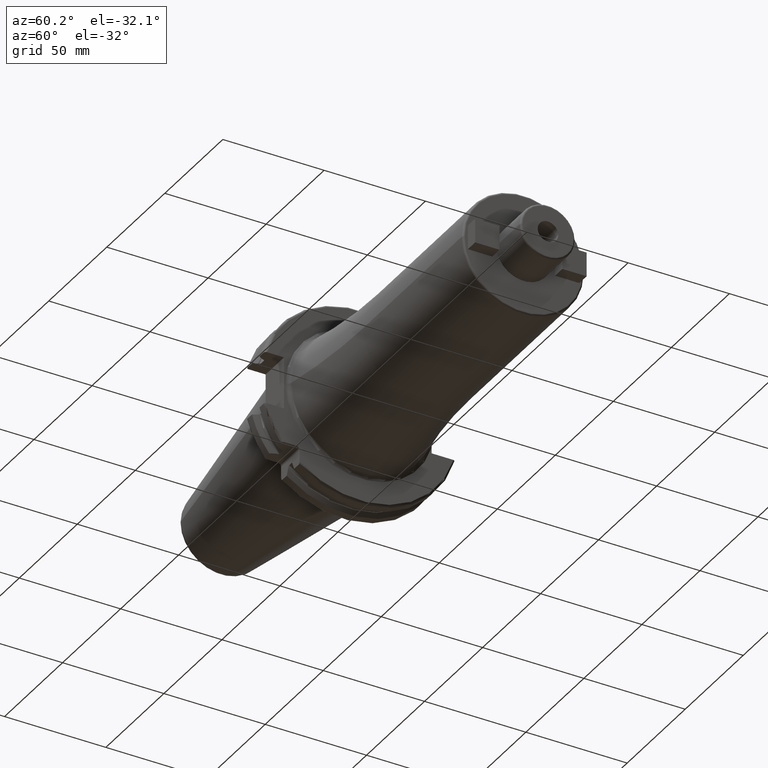
[diagram: clean part render]
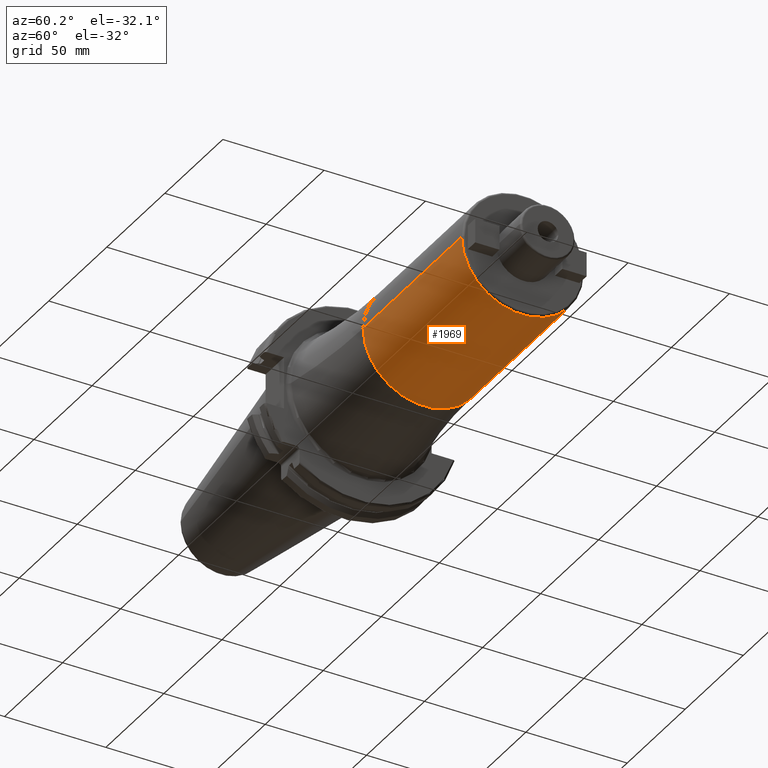
[diagram: same view with one face highlighted and labeled with its STEP entity id]
A machine part, auxiliary view. The second image highlights one B-rep face of the part: STEP entity #1969.
In plain terms, the highlighted cylindrical surface (partial cylindrical patch) has radius 30 mm, axis along (1, 0, 0).
Its self-contained STEP definition (entity closure, byte-faithful):
#222=CARTESIAN_POINT('',(7.405E1,0.E0,0.E0));
#223=DIRECTION('',(1.E0,0.E0,0.E0));
#224=DIRECTION('',(0.E0,-1.E0,0.E0));
#225=AXIS2_PLACEMENT_3D('',#222,#223,#224);
#227=DIRECTION('',(-1.E0,0.E0,0.E0));
#228=VECTOR('',#227,8.495E1);
#229=CARTESIAN_POINT('',(1.59E2,-3.E1,7.135812568718E-13));
#230=LINE('',#229,#228);
#231=CARTESIAN_POINT('',(1.59E2,0.E0,0.E0));
#232=DIRECTION('',(-1.E0,0.E0,0.E0));
#233=DIRECTION('',(0.E0,1.E0,0.E0));
#234=AXIS2_PLACEMENT_3D('',#231,#232,#233);
#236=DIRECTION('',(-1.E0,0.E0,0.E0));
#237=VECTOR('',#236,8.495E1);
#238=CARTESIAN_POINT('',(1.59E2,3.E1,-7.144997419711E-13));
#239=LINE('',#238,#237);
#1614=CARTESIAN_POINT('',(1.59E2,3.E1,0.E0));
#1615=CARTESIAN_POINT('',(1.59E2,-3.E1,0.E0));
#1616=VERTEX_POINT('',#1614);
#1617=VERTEX_POINT('',#1615);
#1672=CARTESIAN_POINT('',(7.405E1,3.E1,0.E0));
#1673=CARTESIAN_POINT('',(7.405E1,-3.E1,0.E0));
#1674=VERTEX_POINT('',#1672);
#1675=VERTEX_POINT('',#1673);
#1955=CARTESIAN_POINT('',(1.09525E1,0.E0,0.E0));
#1956=DIRECTION('',(1.E0,0.E0,0.E0));
#1957=DIRECTION('',(0.E0,-1.E0,0.E0));
#1958=AXIS2_PLACEMENT_3D('',#1955,#1956,#1957);
#1959=CYLINDRICAL_SURFACE('',#1958,3.E1);
#1960=ORIENTED_EDGE('',*,*,#1936,.F.);
#1962=ORIENTED_EDGE('',*,*,#1961,.F.);
#1964=ORIENTED_EDGE('',*,*,#1963,.F.);
#1966=ORIENTED_EDGE('',*,*,#1965,.T.);
#1967=EDGE_LOOP('',(#1960,#1962,#1964,#1966));
#1968=FACE_OUTER_BOUND('',#1967,.F.);
#1969=ADVANCED_FACE('',(#1968),#1959,.T.);
#226=CIRCLE('',#225,3.E1);
#235=CIRCLE('',#234,3.E1);
#1936=EDGE_CURVE('',#1675,#1674,#226,.T.);
#1961=EDGE_CURVE('',#1617,#1675,#230,.T.);
#1963=EDGE_CURVE('',#1616,#1617,#235,.T.);
#1965=EDGE_CURVE('',#1616,#1674,#239,.T.);